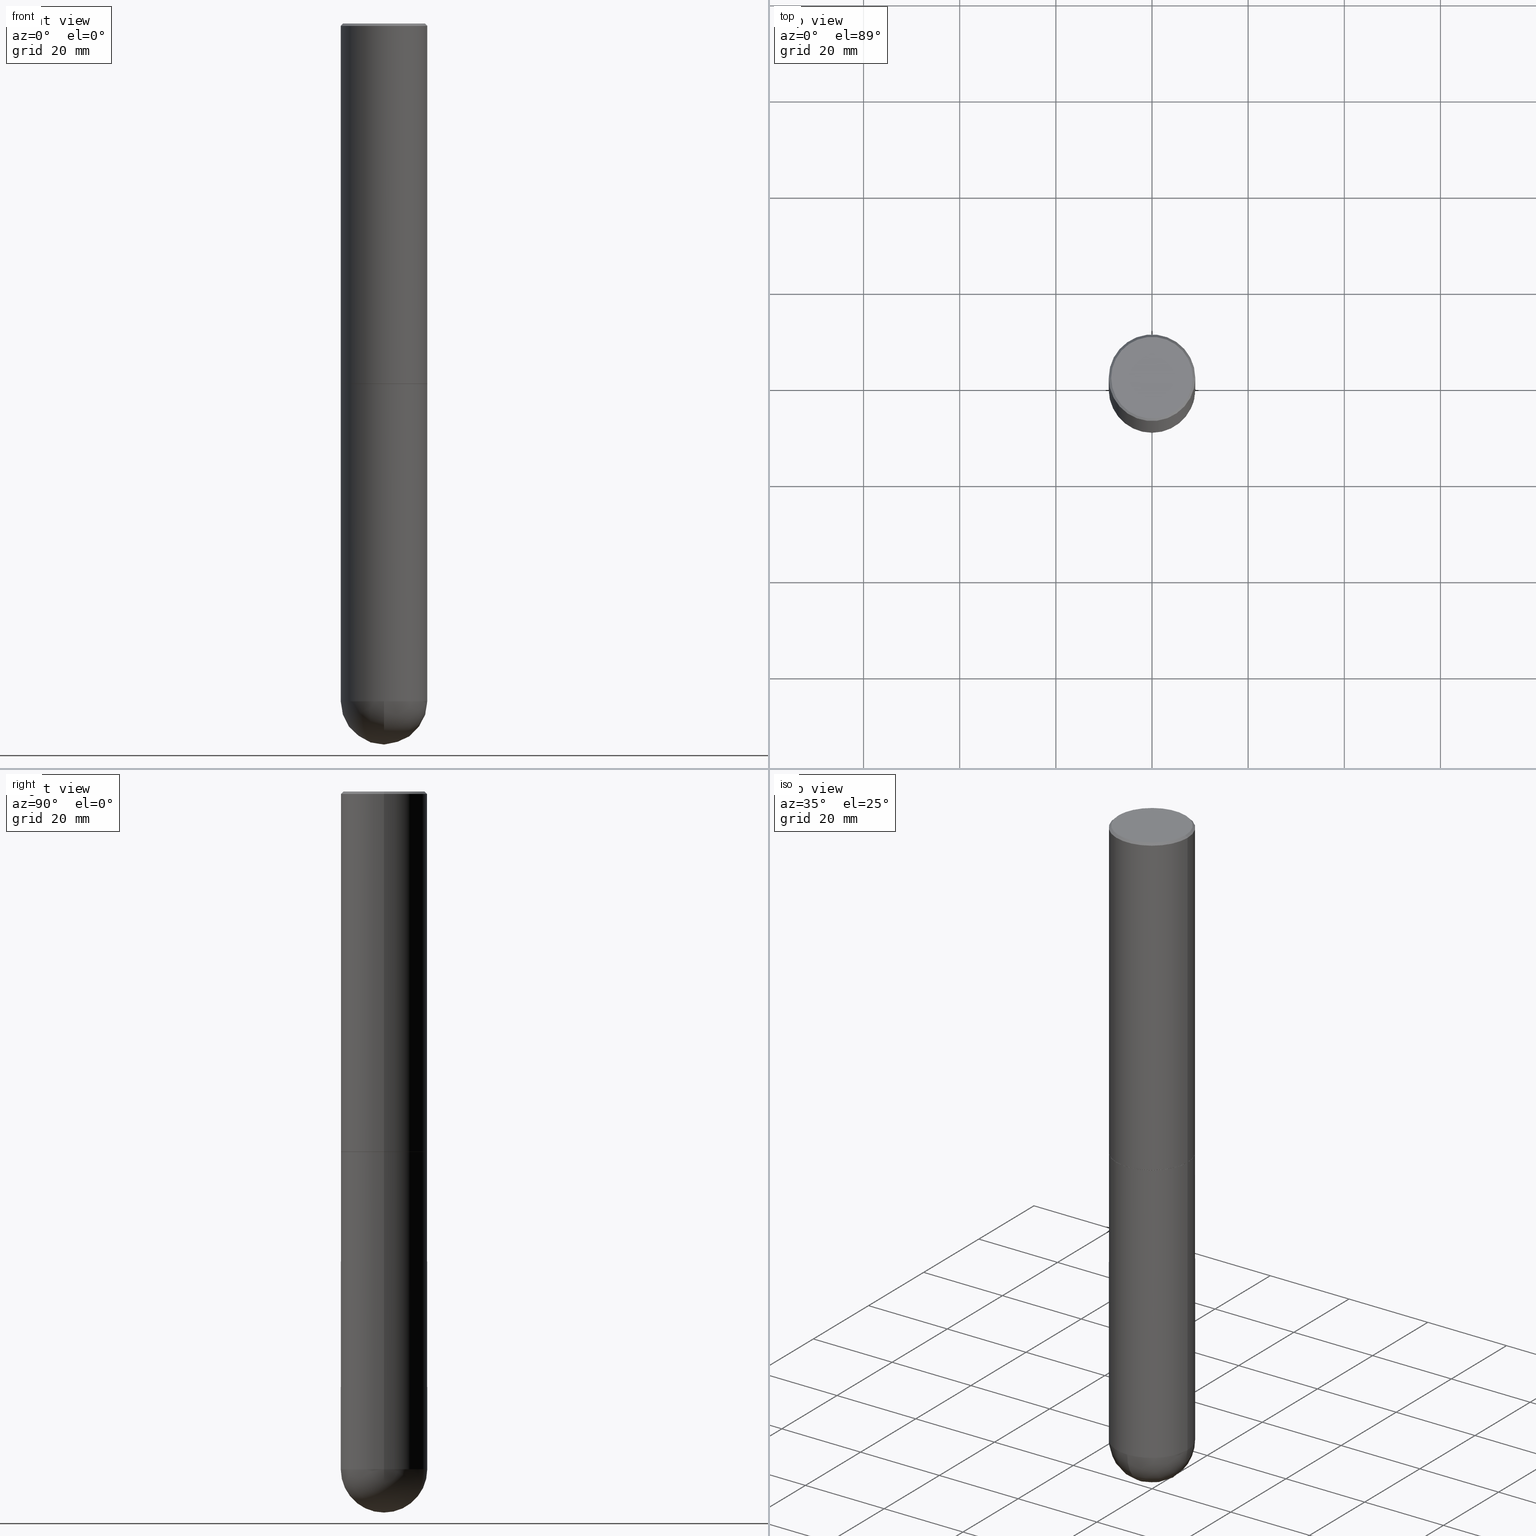
[diagram: canonical four-view strip — front | top / right | iso, engineering-drawing reading convention]
A machine part, canonical four-view strip (front | top / right | iso — engineering-drawing reading convention). The complete STEP part file that produces these views, byte-faithful:
ISO-10303-21;
HEADER;
FILE_DESCRIPTION (( 'STEP AP203' ),
    '1' );
FILE_NAME ('49619.STEP',
    '2024-04-10T12:30:47',
    ( '' ),
    ( '' ),
    'SwSTEP 2.0',
    'SolidWorks 2023',
    '' );
FILE_SCHEMA (( 'CONFIG_CONTROL_DESIGN' ));
ENDSEC;

DATA;
#1 = EDGE_LOOP ( 'NONE', ( #177, #388, #235, #164, #203 ) ) ;
#2 = CARTESIAN_POINT ( 'NONE',  ( -0.3533499999999999974, -7.793295738045619809E-15, -2.952700000000000546 ) ) ;
#3 = EDGE_LOOP ( 'NONE', ( #300, #296, #355, #241 ) ) ;
#4 = ORIENTED_EDGE ( 'NONE', *, *, #351, .F. ) ;
#5 = VERTEX_POINT ( 'NONE', #23 ) ;
#6 = DIRECTION ( 'NONE',  ( 1.000000000000000000, -6.982962677686261189E-15, 0.000000000000000000 ) ) ;
#7 = EDGE_CURVE ( 'NONE', #71, #366, #407, .T. ) ;
#8 = VERTEX_POINT ( 'NONE', #106 ) ;
#9 = AXIS2_PLACEMENT_3D ( 'NONE', #145, #249, #81 ) ;
#10 = SPHERICAL_SURFACE ( 'NONE', #363, 0.3543500000000002204 ) ;
#11 = DIRECTION ( 'NONE',  ( 1.000000000000000000, -6.982962677686265922E-15, 0.000000000000000000 ) ) ;
#12 = CC_DESIGN_PERSON_AND_ORGANIZATION_ASSIGNMENT ( #406, #252, ( #135 ) ) ;
#13 = CARTESIAN_POINT ( 'NONE',  ( 7.220735744022853640E-29, -1.030929694920215659E-14, -2.952700000000000546 ) ) ;
#14 = DIRECTION ( 'NONE',  ( 0.7071067811865466846, -7.319954787623252890E-15, -0.7071067811865483499 ) ) ;
#15 = DATE_AND_TIME ( #244, #70 ) ;
#16 = APPROVAL ( #119, 'UNSPECIFIED' ) ;
#17 = ADVANCED_FACE ( 'NONE', ( #174 ), #196, .T. ) ;
#18 = DIRECTION ( 'NONE',  ( -2.445468806185136597E-29, 3.491481338843145583E-15, 1.000000000000000000 ) ) ;
#19 = DIRECTION ( 'NONE',  ( 2.445468806185136597E-29, -3.491481338843145583E-15, -1.000000000000000000 ) ) ;
#20 = COORDINATED_UNIVERSAL_TIME_OFFSET ( 5, 0, .BEHIND. ) ;
#21 = AXIS2_PLACEMENT_3D ( 'NONE', #74, #178, #358 ) ;
#22 = CARTESIAN_POINT ( 'NONE',  ( -0.3543499999999999983, 2.404583198061265396E-15, -0.02000000000000008021 ) ) ;
#23 = CARTESIAN_POINT ( 'NONE',  ( 0.3543499999999999983, -2.500847092287205690E-15, -0.02000000000000008021 ) ) ;
#24 = PERSON ( 'UNSPECIFIED', 'UNSPECIFIED', 'UNSPECIFIED', ('UNSPECIFIED'), ('UNSPECIFIED'), ('UNSPECIFIED') ) ;
#25 = ORIENTED_EDGE ( 'NONE', *, *, #262, .T. ) ;
#26 = DATE_TIME_ROLE ( 'classification_date' ) ;
#27 = CIRCLE ( 'NONE', #182, 0.3543500000000004424 ) ;
#28 = AXIS2_PLACEMENT_3D ( 'NONE', #404, #266, #228 ) ;
#29 = APPROVAL_PERSON_ORGANIZATION ( #255, #190, #121 ) ;
#30 = CARTESIAN_POINT ( 'NONE',  ( 4.890937612370293302E-31, -6.982962677686318726E-17, -0.02000000000000008021 ) ) ;
#31 = CIRCLE ( 'NONE', #157, 0.3543499999999999428 ) ;
#32 =( LENGTH_UNIT ( ) NAMED_UNIT ( * ) SI_UNIT ( $, .METRE. ) );
#33 = EDGE_CURVE ( 'NONE', #330, #357, #50, .T. ) ;
#34 = DIRECTION ( 'NONE',  ( 1.000000000000000000, -6.982962677686266711E-15, 4.880313359593399126E-29 ) ) ;
#35 = ORIENTED_EDGE ( 'NONE', *, *, #59, .T. ) ;
#36 = ORIENTED_EDGE ( 'NONE', *, *, #273, .T. ) ;
#37 = APPROVAL_PERSON_ORGANIZATION ( #391, #64, #107 ) ;
#38 = ORIENTED_EDGE ( 'NONE', *, *, #378, .T. ) ;
#39 = ADVANCED_FACE ( 'NONE', ( #154 ), #54, .F. ) ;
#40 = LINE ( 'NONE', #344, #337 ) ;
#41 = ORIENTED_EDGE ( 'NONE', *, *, #133, .T. ) ;
#42 = EDGE_CURVE ( 'NONE', #101, #334, #287, .T. ) ;
#43 = ORIENTED_EDGE ( 'NONE', *, *, #51, .T. ) ;
#44 = CIRCLE ( 'NONE', #130, 0.3543499999999999983 ) ;
#45 = AXIS2_PLACEMENT_3D ( 'NONE', #412, #198, #126 ) ;
#46 = DIRECTION ( 'NONE',  ( 2.438088387897960049E-29, -3.491481338843145188E-15, -1.000000000000000000 ) ) ;
#47 = CARTESIAN_POINT ( 'NONE',  ( 1.357516416345461774E-28, -1.938173663411912545E-14, -5.551149999999999807 ) ) ;
#48 = PERSON_AND_ORGANIZATION_ROLE ( 'design_supplier' ) ;
#49 = DIRECTION ( 'NONE',  ( 1.000000000000000000, -6.982962677686266711E-15, 4.876176775795935793E-29 ) ) ;
#50 = LINE ( 'NONE', #284, #324 ) ;
#51 = EDGE_CURVE ( 'NONE', #8, #5, #251, .T. ) ;
#52 = DATE_TIME_ROLE ( 'creation_date' ) ;
#53 = DIRECTION ( 'NONE',  ( -2.445468806185136597E-29, 3.491481338843145583E-15, 1.000000000000000000 ) ) ;
#54 = PLANE ( 'NONE',  #123 ) ;
#55 = AXIS2_PLACEMENT_3D ( 'NONE', #245, #46, #108 ) ;
#56 = FACE_OUTER_BOUND ( 'NONE', #238, .T. ) ;
#57 = CARTESIAN_POINT ( 'NONE',  ( 1.412574766574097249E-28, -2.107142773501435227E-14, -5.905499999999999972 ) ) ;
#58 = DIRECTION ( 'NONE',  ( 0.000000000000000000, 0.000000000000000000, 1.000000000000000000 ) ) ;
#59 = EDGE_CURVE ( 'NONE', #5, #353, #44, .T. ) ;
#60 = DIRECTION ( 'NONE',  ( 1.000000000000000000, -6.982962677686261189E-15, 0.000000000000000000 ) ) ;
#61 = DATE_AND_TIME ( #187, #112 ) ;
#62 = CC_DESIGN_DATE_AND_TIME_ASSIGNMENT ( #306, #52, ( #135 ) ) ;
#63 = EDGE_CURVE ( 'NONE', #334, #146, #289, .T. ) ;
#64 = APPROVAL ( #155, 'UNSPECIFIED' ) ;
#65 = CARTESIAN_POINT ( 'NONE',  ( -5.636797637410186442E-45, 8.047853120054415592E-31, 2.304996744654222029E-16 ) ) ;
#66 = VECTOR ( 'NONE', #409, 39.37007874015748143 ) ;
#67 = ORIENTED_EDGE ( 'NONE', *, *, #273, .F. ) ;
#68 = ORIENTED_EDGE ( 'NONE', *, *, #95, .T. ) ;
#69 = ORIENTED_EDGE ( 'NONE', *, *, #7, .F. ) ;
#70 = LOCAL_TIME ( 8, 30, 46.00000000000000000, #20 ) ;
#71 = VERTEX_POINT ( 'NONE', #57 ) ;
#72 = DIRECTION ( 'NONE',  ( 1.000000000000000000, -6.982962677686267499E-15, 0.000000000000000000 ) ) ;
#73 = ORIENTED_EDGE ( 'NONE', *, *, #397, .F. ) ;
#74 = CARTESIAN_POINT ( 'NONE',  ( 0.000000000000000000, 0.000000000000000000, 0.000000000000000000 ) ) ;
#75 = DIRECTION ( 'NONE',  ( -2.445468806185136597E-29, 3.491481338843145583E-15, 1.000000000000000000 ) ) ;
#76 = PERSON_AND_ORGANIZATION ( #24, #224 ) ;
#77 = AXIS2_PLACEMENT_3D ( 'NONE', #65, #225, #34 ) ;
#78 = CYLINDRICAL_SURFACE ( 'NONE', #21, 0.3543500000000002204 ) ;
#79 = CARTESIAN_POINT ( 'NONE',  ( -0.3543499999999999983, -1.232770860749472484E-14, -2.952700000000000102 ) ) ;
#80 = PRODUCT ( '49619', '49619', '', ( #316 ) ) ;
#81 = DIRECTION ( 'NONE',  ( 1.000000000000000000, -6.982962677686267499E-15, 0.000000000000000000 ) ) ;
#82 = DIRECTION ( 'NONE',  ( -2.445468806185136597E-29, 3.491481338843145583E-15, 1.000000000000000000 ) ) ;
#83 = DIRECTION ( 'NONE',  ( 1.000000000000000000, -6.982962677686266711E-15, 4.880313359593399126E-29 ) ) ;
#84 = CARTESIAN_POINT ( 'NONE',  ( 7.220735744022852519E-29, -1.030929694920215502E-14, -2.952700000000000102 ) ) ;
#85 = EDGE_CURVE ( 'NONE', #101, #272, #269, .T. ) ;
#86 = CLOSED_SHELL ( 'NONE', ( #205, #194, #292, #17, #370, #221, #380, #183 ) ) ;
#87 = AXIS2_PLACEMENT_3D ( 'NONE', #401, #18, #6 ) ;
#88 = MANIFOLD_SOLID_BREP ( 'Body-Move/Copy2[1]', #209 ) ;
#89 = DIRECTION ( 'NONE',  ( 1.000000000000000000, -6.982962677686261189E-15, 0.000000000000000000 ) ) ;
#90 = CC_DESIGN_DATE_AND_TIME_ASSIGNMENT ( #153, #26, ( #148 ) ) ;
#91 = CIRCLE ( 'NONE', #197, 0.3543500000000002204 ) ;
#92 = CC_DESIGN_APPROVAL ( #190, ( #365 ) ) ;
#93 = FACE_OUTER_BOUND ( 'NONE', #271, .T. ) ;
#94 = DIRECTION ( 'NONE',  ( 1.000000000000000000, -6.982962677686266711E-15, 0.000000000000000000 ) ) ;
#95 = EDGE_CURVE ( 'NONE', #357, #375, #27, .T. ) ;
#96 = AXIS2_PLACEMENT_3D ( 'NONE', #84, #219, #11 ) ;
#97 = ORIENTED_EDGE ( 'NONE', *, *, #33, .T. ) ;
#98 = ORIENTED_EDGE ( 'NONE', *, *, #378, .F. ) ;
#99 = EDGE_LOOP ( 'NONE', ( #69, #41, #354, #186 ) ) ;
#100 = DIMENSIONAL_EXPONENTS ( 1.000000000000000000, 0.000000000000000000, 0.000000000000000000, 0.000000000000000000, 0.000000000000000000, 0.000000000000000000, 0.000000000000000000 ) ;
#101 = VERTEX_POINT ( 'NONE', #258 ) ;
#102 = CONICAL_SURFACE ( 'NONE', #346, 0.3533499999999999974, 0.7853981633974824739 ) ;
#103 = DIRECTION ( 'NONE',  ( -1.000000000000000000, 6.982962677686266711E-15, 0.000000000000000000 ) ) ;
#104 = ORIENTED_EDGE ( 'NONE', *, *, #149, .F. ) ;
#105 = DIRECTION ( 'NONE',  ( -1.000000000000000000, 6.982962677686265922E-15, -4.883557194083112340E-29 ) ) ;
#106 = CARTESIAN_POINT ( 'NONE',  ( 0.3343499999999997585, -2.397327298921057526E-15, 2.304996744654387690E-16 ) ) ;
#107 = APPROVAL_ROLE ( '' ) ;
#108 = DIRECTION ( 'NONE',  ( -1.000000000000000000, 6.982962677686265922E-15, -4.876176775795935793E-29 ) ) ;
#109 = CARTESIAN_POINT ( 'NONE',  ( 1.357516416345461774E-28, -1.938173663411912545E-14, -5.551149999999999807 ) ) ;
#110 = COORDINATED_UNIVERSAL_TIME_OFFSET ( 5, 0, .BEHIND. ) ;
#111 = AXIS2_PLACEMENT_3D ( 'NONE', #212, #142, #49 ) ;
#112 = LOCAL_TIME ( 8, 30, 46.00000000000000000, #260 ) ;
#113 = DIRECTION ( 'NONE',  ( 1.000000000000000000, -6.982962677686267499E-15, 0.000000000000000000 ) ) ;
#114 = CARTESIAN_POINT ( 'NONE',  ( 0.3543499999999999983, -2.474412824838128694E-15, 1.727873240503289749E-29 ) ) ;
#115 = ADVANCED_BREP_SHAPE_REPRESENTATION ( '49619', ( #88, #232, #396 ), #349 ) ;
#116 = DIRECTION ( 'NONE',  ( -2.445468806185136597E-29, 3.491481338843145583E-15, 1.000000000000000000 ) ) ;
#117 = DIRECTION ( 'NONE',  ( -2.445468806185136877E-29, 3.491481338843145188E-15, 1.000000000000000000 ) ) ;
#118 = EDGE_CURVE ( 'NONE', #272, #201, #411, .T. ) ;
#119 = APPROVAL_STATUS ( 'not_yet_approved' ) ;
#120 = DIRECTION ( 'NONE',  ( -2.445468806185136597E-29, 3.491481338843145583E-15, 1.000000000000000000 ) ) ;
#121 = APPROVAL_ROLE ( '' ) ;
#122 = VECTOR ( 'NONE', #117, 39.37007874015748143 ) ;
#123 = AXIS2_PLACEMENT_3D ( 'NONE', #281, #303, #151 ) ;
#124 = AXIS2_PLACEMENT_3D ( 'NONE', #368, #253, #180 ) ;
#125 = APPROVAL_ROLE ( '' ) ;
#126 = DIRECTION ( 'NONE',  ( 1.000000000000000000, -6.982962677686267499E-15, 0.000000000000000000 ) ) ;
#127 = CARTESIAN_POINT ( 'NONE',  ( 7.220735744022853640E-29, -1.030929694920215659E-14, -2.952700000000000546 ) ) ;
#128 = LINE ( 'NONE', #227, #192 ) ;
#129 = ORIENTED_EDGE ( 'NONE', *, *, #317, .F. ) ;
#130 = AXIS2_PLACEMENT_3D ( 'NONE', #347, #82, #402 ) ;
#131 = AXIS2_PLACEMENT_3D ( 'NONE', #127, #195, #326 ) ;
#132 = VERTEX_POINT ( 'NONE', #222 ) ;
#133 = EDGE_CURVE ( 'NONE', #71, #272, #91, .T. ) ;
#134 = EDGE_LOOP ( 'NONE', ( #277, #167 ) ) ;
#135 = PRODUCT_DEFINITION ( 'UNKNOWN', '', #365, #410 ) ;
#136 = ORIENTED_EDGE ( 'NONE', *, *, #42, .T. ) ;
#137 = DIRECTION ( 'NONE',  ( -2.445468806185136597E-29, 3.491481338843145583E-15, 1.000000000000000000 ) ) ;
#138 = EDGE_LOOP ( 'NONE', ( #236, #267, #104, #382 ) ) ;
#139 = ADVANCED_FACE ( 'NONE', ( #179 ), #247, .T. ) ;
#140 = DIRECTION ( 'NONE',  ( 0.7071067811865715536, -2.468850131082509496E-15, 0.7071067811865232589 ) ) ;
#141 = CARTESIAN_POINT ( 'NONE',  ( 1.324404438554073486E-28, -1.985591900225917417E-14, -5.551149999999999807 ) ) ;
#142 = DIRECTION ( 'NONE',  ( -2.445468806185136597E-29, 3.491481338843145583E-15, 1.000000000000000000 ) ) ;
#143 = DIRECTION ( 'NONE',  ( -1.000000000000000000, 6.982962677686266711E-15, 0.000000000000000000 ) ) ;
#144 = SECURITY_CLASSIFICATION_LEVEL ( 'unclassified' ) ;
#145 = CARTESIAN_POINT ( 'NONE',  ( 7.220735744022853640E-29, -1.030929694920215659E-14, -2.952700000000000546 ) ) ;
#146 = VERTEX_POINT ( 'NONE', #79 ) ;
#147 = VECTOR ( 'NONE', #170, 39.37007874015748143 ) ;
#148 = SECURITY_CLASSIFICATION ( '', '', #144 ) ;
#149 = EDGE_CURVE ( 'NONE', #201, #366, #31, .T. ) ;
#150 = CARTESIAN_POINT ( 'NONE',  ( 2.474412824838263195E-15, 0.3543499999999804584, -5.551150000000000695 ) ) ;
#151 = DIRECTION ( 'NONE',  ( -1.000000000000000000, 6.982962677686265922E-15, -4.876176775795935793E-29 ) ) ;
#152 = APPLICATION_PROTOCOL_DEFINITION ( 'international standard', 'config_control_design', 1994, #311 ) ;
#153 = DATE_AND_TIME ( #248, #158 ) ;
#154 = FACE_OUTER_BOUND ( 'NONE', #134, .T. ) ;
#155 = APPROVAL_STATUS ( 'not_yet_approved' ) ;
#156 = FACE_OUTER_BOUND ( 'NONE', #138, .T. ) ;
#157 = AXIS2_PLACEMENT_3D ( 'NONE', #47, #321, #60 ) ;
#158 = LOCAL_TIME ( 8, 30, 46.00000000000000000, #110 ) ;
#159 = CALENDAR_DATE ( 2024, 10, 4 ) ;
#160 = AXIS2_PLACEMENT_3D ( 'NONE', #13, #53, #72 ) ;
#161 = CYLINDRICAL_SURFACE ( 'NONE', #28, 0.3543500000000002204 ) ;
#162 = EDGE_LOOP ( 'NONE', ( #98, #43, #35, #384 ) ) ;
#163 =( NAMED_UNIT ( * ) PLANE_ANGLE_UNIT ( ) SI_UNIT ( $, .RADIAN. ) );
#164 = ORIENTED_EDGE ( 'NONE', *, *, #42, .F. ) ;
#165 = ADVANCED_FACE ( 'NONE', ( #156 ), #188, .T. ) ;
#166 = LOCAL_TIME ( 8, 30, 46.00000000000000000, #189 ) ;
#167 = ORIENTED_EDGE ( 'NONE', *, *, #169, .T. ) ;
#168 = ORIENTED_EDGE ( 'NONE', *, *, #250, .T. ) ;
#169 = EDGE_CURVE ( 'NONE', #146, #334, #237, .T. ) ;
#170 = DIRECTION ( 'NONE',  ( -0.7071067811865466846, 2.468850131082247989E-15, -0.7071067811865483499 ) ) ;
#171 = ORIENTED_EDGE ( 'NONE', *, *, #59, .F. ) ;
#172 = LINE ( 'NONE', #338, #66 ) ;
#173 = CIRCLE ( 'NONE', #408, 0.3543499999999999983 ) ;
#174 = FACE_OUTER_BOUND ( 'NONE', #294, .T. ) ;
#175 = CIRCLE ( 'NONE', #374, 0.3343499999999997585 ) ;
#176 = DIRECTION ( 'NONE',  ( 1.000000000000000000, -6.982962677686265922E-15, 0.000000000000000000 ) ) ;
#177 = ORIENTED_EDGE ( 'NONE', *, *, #118, .T. ) ;
#178 = DIRECTION ( 'NONE',  ( -2.445468806185136597E-29, 3.491481338843145583E-15, 1.000000000000000000 ) ) ;
#179 = FACE_OUTER_BOUND ( 'NONE', #274, .T. ) ;
#180 = DIRECTION ( 'NONE',  ( 6.982962677686265922E-15, 1.000000000000000000, -3.083784951222533328E-15 ) ) ;
#181 = ORIENTED_EDGE ( 'NONE', *, *, #397, .T. ) ;
#182 = AXIS2_PLACEMENT_3D ( 'NONE', #405, #120, #210 ) ;
#183 = ADVANCED_FACE ( 'NONE', ( #392 ), #280, .F. ) ;
#184 = CC_DESIGN_SECURITY_CLASSIFICATION ( #148, ( #365 ) ) ;
#185 = CARTESIAN_POINT ( 'NONE',  ( 0.3543500000000004424, -1.278021829270144662E-14, -2.951700000000000212 ) ) ;
#186 = ORIENTED_EDGE ( 'NONE', *, *, #239, .F. ) ;
#187 = CALENDAR_DATE ( 2024, 10, 4 ) ;
#188 = SPHERICAL_SURFACE ( 'NONE', #124, 0.3543500000000002204 ) ;
#189 = COORDINATED_UNIVERSAL_TIME_OFFSET ( 5, 0, .BEHIND. ) ;
#190 = APPROVAL ( #218, 'UNSPECIFIED' ) ;
#191 = AXIS2_PLACEMENT_3D ( 'NONE', #373, #390, #216 ) ;
#192 = VECTOR ( 'NONE', #323, 39.37007874015748143 ) ;
#193 = PLANE ( 'NONE',  #131 ) ;
#194 = ADVANCED_FACE ( 'NONE', ( #283 ), #78, .T. ) ;
#195 = DIRECTION ( 'NONE',  ( -2.438088387897960049E-29, 3.491481338843145188E-15, 1.000000000000000000 ) ) ;
#196 = CONICAL_SURFACE ( 'NONE', #259, 0.3543499999999999983, 0.7853981633974471688 ) ;
#197 = AXIS2_PLACEMENT_3D ( 'NONE', #141, #279, #243 ) ;
#198 = DIRECTION ( 'NONE',  ( -2.445468806185136597E-29, 3.491481338843145583E-15, 1.000000000000000000 ) ) ;
#199 = ORIENTED_EDGE ( 'NONE', *, *, #51, .F. ) ;
#200 = EDGE_CURVE ( 'NONE', #293, #375, #398, .T. ) ;
#201 = VERTEX_POINT ( 'NONE', #215 ) ;
#202 = LOCAL_TIME ( 8, 30, 46.00000000000000000, #256 ) ;
#203 = ORIENTED_EDGE ( 'NONE', *, *, #85, .T. ) ;
#204 = ORIENTED_EDGE ( 'NONE', *, *, #234, .F. ) ;
#205 = ADVANCED_FACE ( 'NONE', ( #360 ), #102, .T. ) ;
#206 = CARTESIAN_POINT ( 'NONE',  ( 0.3533499999999999974, -1.277672681136259888E-14, -2.952700000000000546 ) ) ;
#207 = EDGE_LOOP ( 'NONE', ( #329, #181, #171, #343 ) ) ;
#208 = DIRECTION ( 'NONE',  ( 1.000000000000000000, -6.982962677686268288E-15, 0.000000000000000000 ) ) ;
#209 = CLOSED_SHELL ( 'NONE', ( #226, #165, #298, #39, #139 ) ) ;
#210 = DIRECTION ( 'NONE',  ( 1.000000000000000000, -6.982962677686268288E-15, 0.000000000000000000 ) ) ;
#211 = DIRECTION ( 'NONE',  ( 1.000000000000000000, 0.000000000000000000, 0.000000000000000000 ) ) ;
#212 = CARTESIAN_POINT ( 'NONE',  ( 0.000000000000000000, 0.000000000000000000, 0.000000000000000000 ) ) ;
#213 = ORIENTED_EDGE ( 'NONE', *, *, #169, .F. ) ;
#214 = APPLICATION_PROTOCOL_DEFINITION ( 'international standard', 'config_control_design', 1994, #261 ) ;
#215 = CARTESIAN_POINT ( 'NONE',  ( -0.3543499999999999428, -1.232770860749472642E-14, -5.551149999999999807 ) ) ;
#216 = DIRECTION ( 'NONE',  ( -7.105427357601001070E-15, -1.000000000000000000, 0.000000000000000000 ) ) ;
#217 = CC_DESIGN_PERSON_AND_ORGANIZATION_ASSIGNMENT ( #310, #322, ( #80 ) ) ;
#218 = APPROVAL_STATUS ( 'not_yet_approved' ) ;
#219 = DIRECTION ( 'NONE',  ( -2.445468806185136597E-29, 3.491481338843145583E-15, 1.000000000000000000 ) ) ;
#220 = CIRCLE ( 'NONE', #276, 0.3543500000000004424 ) ;
#221 = ADVANCED_FACE ( 'NONE', ( #333 ), #264, .T. ) ;
#222 = CARTESIAN_POINT ( 'NONE',  ( -0.3343499999999997585, 2.369668384672834141E-15, 2.304996744654057847E-16 ) ) ;
#223 = SHAPE_DEFINITION_REPRESENTATION ( #309, #115 ) ;
#224 = ORGANIZATION ( 'UNSPECIFIED', 'UNSPECIFIED', '' ) ;
#225 = DIRECTION ( 'NONE',  ( -2.445468806185136597E-29, 3.491481338843145583E-15, 1.000000000000000000 ) ) ;
#226 = ADVANCED_FACE ( 'NONE', ( #342 ), #301, .T. ) ;
#227 = CARTESIAN_POINT ( 'NONE',  ( -0.3543500000000002204, 2.517808184165916574E-15, -1.743024649231827187E-29 ) ) ;
#228 = DIRECTION ( 'NONE',  ( 1.000000000000000000, -6.982962677686266711E-15, 4.876176775795935793E-29 ) ) ;
#229 = LENGTH_MEASURE_WITH_UNIT ( LENGTH_MEASURE( 0.02539999999999999897 ), #32 );
#230 = VECTOR ( 'NONE', #14, 39.37007874015748143 ) ;
#231 = CIRCLE ( 'NONE', #45, 0.3533499999999999974 ) ;
#232 = MANIFOLD_SOLID_BREP ( 'Body-Move/Copy2[2]', #86 ) ;
#233 = ORIENTED_EDGE ( 'NONE', *, *, #327, .F. ) ;
#234 = EDGE_CURVE ( 'NONE', #375, #357, #220, .T. ) ;
#235 = ORIENTED_EDGE ( 'NONE', *, *, #63, .F. ) ;
#236 = ORIENTED_EDGE ( 'NONE', *, *, #133, .F. ) ;
#237 = CIRCLE ( 'NONE', #331, 0.3543499999999999983 ) ;
#238 = EDGE_LOOP ( 'NONE', ( #336, #4 ) ) ;
#239 = EDGE_CURVE ( 'NONE', #366, #101, #246, .T. ) ;
#240 = CARTESIAN_POINT ( 'NONE',  ( 7.220735744022853640E-29, -1.030929694920215659E-14, -2.952700000000000546 ) ) ;
#241 = ORIENTED_EDGE ( 'NONE', *, *, #95, .F. ) ;
#242 = DIRECTION ( 'NONE',  ( 6.982962677686265922E-15, 1.000000000000000000, -3.083784951222533328E-15 ) ) ;
#243 = DIRECTION ( 'NONE',  ( 6.982962677686265133E-15, 1.000000000000000000, 0.000000000000000000 ) ) ;
#244 = CALENDAR_DATE ( 2024, 10, 4 ) ;
#245 = CARTESIAN_POINT ( 'NONE',  ( 2.334753571284400914E-15, 0.3343499999999997585, -1.052126948409493867E-15 ) ) ;
#246 = CIRCLE ( 'NONE', #87, 0.3543499999999999428 ) ;
#247 = CYLINDRICAL_SURFACE ( 'NONE', #290, 0.3543499999999999983 ) ;
#248 = CALENDAR_DATE ( 2024, 10, 4 ) ;
#249 = DIRECTION ( 'NONE',  ( -2.445468806185136597E-29, 3.491481338843145583E-15, 1.000000000000000000 ) ) ;
#250 = EDGE_CURVE ( 'NONE', #293, #330, #325, .T. ) ;
#251 = LINE ( 'NONE', #369, #230 ) ;
#252 = PERSON_AND_ORGANIZATION_ROLE ( 'creator' ) ;
#253 = DIRECTION ( 'NONE',  ( -1.000000000000000000, 6.982962677686265922E-15, -4.883557194083112340E-29 ) ) ;
#254 = ORIENTED_EDGE ( 'NONE', *, *, #239, .T. ) ;
#255 = PERSON_AND_ORGANIZATION ( #24, #224 ) ;
#256 = COORDINATED_UNIVERSAL_TIME_OFFSET ( 5, 0, .BEHIND. ) ;
#257 = UNCERTAINTY_MEASURE_WITH_UNIT (LENGTH_MEASURE( 1.000000000000000082E-05 ), #318, 'distance_accuracy_value', 'NONE');
#258 = CARTESIAN_POINT ( 'NONE',  ( 0.3543499999999999428, -1.731992961649876932E-14, -5.551149999999999807 ) ) ;
#259 = AXIS2_PLACEMENT_3D ( 'NONE', #399, #19, #143 ) ;
#260 = COORDINATED_UNIVERSAL_TIME_OFFSET ( 5, 0, .BEHIND. ) ;
#261 = APPLICATION_CONTEXT ( 'configuration controlled 3d designs of mechanical parts and assemblies' ) ;
#262 = EDGE_CURVE ( 'NONE', #375, #5, #40, .T. ) ;
#263 = EDGE_CURVE ( 'NONE', #132, #353, #312, .T. ) ;
#264 = CONICAL_SURFACE ( 'NONE', #160, 0.3533499999999999974, 0.7853981633974824739 ) ;
#265 = DIRECTION ( 'NONE',  ( -2.445468806185136597E-29, 3.491481338843145583E-15, 1.000000000000000000 ) ) ;
#266 = DIRECTION ( 'NONE',  ( -2.445468806185136597E-29, 3.491481338843145583E-15, 1.000000000000000000 ) ) ;
#267 = ORIENTED_EDGE ( 'NONE', *, *, #7, .T. ) ;
#268 =( NAMED_UNIT ( * ) SI_UNIT ( $, .STERADIAN. ) SOLID_ANGLE_UNIT ( ) );
#269 = CIRCLE ( 'NONE', #381, 0.3543499999999999428 ) ;
#270 = CIRCLE ( 'NONE', #77, 0.3343499999999997585 ) ;
#271 = EDGE_LOOP ( 'NONE', ( #73, #68, #25, #233 ) ) ;
#272 = VERTEX_POINT ( 'NONE', #150 ) ;
#273 = EDGE_CURVE ( 'NONE', #132, #8, #175, .T. ) ;
#274 = EDGE_LOOP ( 'NONE', ( #129, #308, #254, #136, #213 ) ) ;
#275 = CARTESIAN_POINT ( 'NONE',  ( 4.890937612370293302E-31, -6.982962677686318726E-17, -0.02000000000000008021 ) ) ;
#276 = AXIS2_PLACEMENT_3D ( 'NONE', #372, #307, #208 ) ;
#277 = ORIENTED_EDGE ( 'NONE', *, *, #63, .T. ) ;
#278 = DIRECTION ( 'NONE',  ( -2.445468806185136877E-29, 3.491481338843145188E-15, 1.000000000000000000 ) ) ;
#279 = DIRECTION ( 'NONE',  ( 1.000000000000000000, -6.982962677686265922E-15, 4.883557194083112340E-29 ) ) ;
#280 = PLANE ( 'NONE',  #55 ) ;
#281 = CARTESIAN_POINT ( 'NONE',  ( 2.474412824838200480E-15, 0.3543499999999896732, -2.952700000000000990 ) ) ;
#282 = PERSON_AND_ORGANIZATION ( #24, #224 ) ;
#283 = FACE_OUTER_BOUND ( 'NONE', #207, .T. ) ;
#284 = CARTESIAN_POINT ( 'NONE',  ( -0.3533499999999999974, -7.798594192393843789E-15, -2.952700000000000546 ) ) ;
#285 = APPROVAL_DATE_TIME ( #376, #16 ) ;
#286 = CARTESIAN_POINT ( 'NONE',  ( -5.636797637410186442E-45, 8.047853120054415592E-31, 2.304996744654222029E-16 ) ) ;
#287 = LINE ( 'NONE', #114, #122 ) ;
#288 = DIRECTION ( 'NONE',  ( -2.445468806185136597E-29, 3.491481338843145583E-15, 1.000000000000000000 ) ) ;
#289 = CIRCLE ( 'NONE', #96, 0.3543499999999999983 ) ;
#290 = AXIS2_PLACEMENT_3D ( 'NONE', #361, #75, #340 ) ;
#291 = CARTESIAN_POINT ( 'NONE',  ( 0.3543499999999999983, -1.278370977404028332E-14, -2.952700000000000102 ) ) ;
#292 = ADVANCED_FACE ( 'NONE', ( #299 ), #302, .T. ) ;
#293 = VERTEX_POINT ( 'NONE', #206 ) ;
#294 = EDGE_LOOP ( 'NONE', ( #199, #67, #385, #359 ) ) ;
#295 = CC_DESIGN_APPROVAL ( #16, ( #148 ) ) ;
#296 = ORIENTED_EDGE ( 'NONE', *, *, #351, .T. ) ;
#297 = CC_DESIGN_PERSON_AND_ORGANIZATION_ASSIGNMENT ( #76, #48, ( #365 ) ) ;
#298 = ADVANCED_FACE ( 'NONE', ( #335 ), #10, .T. ) ;
#299 = FACE_OUTER_BOUND ( 'NONE', #162, .T. ) ;
#300 = ORIENTED_EDGE ( 'NONE', *, *, #33, .F. ) ;
#301 = CYLINDRICAL_SURFACE ( 'NONE', #111, 0.3543499999999999983 ) ;
#302 = CONICAL_SURFACE ( 'NONE', #352, 0.3543499999999999983, 0.7853981633974471688 ) ;
#303 = DIRECTION ( 'NONE',  ( 2.438088387897960049E-29, -3.491481338843145188E-15, -1.000000000000000000 ) ) ;
#304 = CARTESIAN_POINT ( 'NONE',  ( 0.3533499999999999974, -1.277672681136259888E-14, -2.952700000000000546 ) ) ;
#305 = DIRECTION ( 'NONE',  ( -2.445468806185136597E-29, 3.491481338843145583E-15, 1.000000000000000000 ) ) ;
#306 = DATE_AND_TIME ( #403, #166 ) ;
#307 = DIRECTION ( 'NONE',  ( -2.445468806185136597E-29, 3.491481338843145583E-15, 1.000000000000000000 ) ) ;
#308 = ORIENTED_EDGE ( 'NONE', *, *, #149, .T. ) ;
#309 = PRODUCT_DEFINITION_SHAPE ( 'NONE', 'NONE',  #135 ) ;
#310 = PERSON_AND_ORGANIZATION ( #24, #224 ) ;
#311 = APPLICATION_CONTEXT ( 'configuration controlled 3d designs of mechanical parts and assemblies' ) ;
#312 = LINE ( 'NONE', #22, #147 ) ;
#313 = AXIS2_PLACEMENT_3D ( 'NONE', #109, #305, #89 ) ;
#314 = ORIENTED_EDGE ( 'NONE', *, *, #200, .F. ) ;
#315 = APPROVAL_PERSON_ORGANIZATION ( #367, #16, #125 ) ;
#316 = MECHANICAL_CONTEXT ( 'NONE', #261, 'mechanical' ) ;
#317 = EDGE_CURVE ( 'NONE', #201, #146, #172, .T. ) ;
#318 =( CONVERSION_BASED_UNIT ( 'INCH', #229 ) LENGTH_UNIT ( ) NAMED_UNIT ( #100 ) );
#319 = CARTESIAN_POINT ( 'NONE',  ( 1.357516416345461774E-28, -1.938173663411912545E-14, -5.551149999999999807 ) ) ;
#320 = APPROVAL_DATE_TIME ( #61, #64 ) ;
#321 = DIRECTION ( 'NONE',  ( -2.445468806185136597E-29, 3.491481338843145583E-15, 1.000000000000000000 ) ) ;
#322 = PERSON_AND_ORGANIZATION_ROLE ( 'design_owner' ) ;
#323 = DIRECTION ( 'NONE',  ( -2.445468806185136877E-29, 3.491481338843145188E-15, 1.000000000000000000 ) ) ;
#324 = VECTOR ( 'NONE', #345, 39.37007874015748854 ) ;
#325 = CIRCLE ( 'NONE', #9, 0.3533499999999999974 ) ;
#326 = DIRECTION ( 'NONE',  ( 1.000000000000000000, -6.982962677686265922E-15, 4.876176775795935793E-29 ) ) ;
#327 = EDGE_CURVE ( 'NONE', #353, #5, #173, .T. ) ;
#328 = CARTESIAN_POINT ( 'NONE',  ( -0.3543500000000004424, -2.670009363154166740E-15, -2.951700000000000212 ) ) ;
#329 = ORIENTED_EDGE ( 'NONE', *, *, #234, .T. ) ;
#330 = VERTEX_POINT ( 'NONE', #2 ) ;
#331 = AXIS2_PLACEMENT_3D ( 'NONE', #348, #137, #176 ) ;
#332 = EDGE_LOOP ( 'NONE', ( #168, #97, #204, #314 ) ) ;
#333 = FACE_OUTER_BOUND ( 'NONE', #3, .T. ) ;
#334 = VERTEX_POINT ( 'NONE', #291 ) ;
#335 = FACE_OUTER_BOUND ( 'NONE', #99, .T. ) ;
#336 = ORIENTED_EDGE ( 'NONE', *, *, #250, .F. ) ;
#337 = VECTOR ( 'NONE', #278, 39.37007874015748143 ) ;
#338 = CARTESIAN_POINT ( 'NONE',  ( -0.3543499999999999983, 2.517808184165914997E-15, -1.743024649231826066E-29 ) ) ;
#339 = CC_DESIGN_APPROVAL ( #64, ( #135 ) ) ;
#340 = DIRECTION ( 'NONE',  ( 1.000000000000000000, -6.982962677686266711E-15, 4.876176775795935793E-29 ) ) ;
#341 = APPROVAL_DATE_TIME ( #15, #190 ) ;
#342 = FACE_OUTER_BOUND ( 'NONE', #1, .T. ) ;
#343 = ORIENTED_EDGE ( 'NONE', *, *, #262, .F. ) ;
#344 = CARTESIAN_POINT ( 'NONE',  ( 0.3543500000000002204, -2.474412824838130272E-15, 1.727873240503290870E-29 ) ) ;
#345 = DIRECTION ( 'NONE',  ( -0.7071067811865715536, 7.493145998870439357E-15, 0.7071067811865232589 ) ) ;
#346 = AXIS2_PLACEMENT_3D ( 'NONE', #240, #364, #113 ) ;
#347 = CARTESIAN_POINT ( 'NONE',  ( 4.890937612370293302E-31, -6.982962677686318726E-17, -0.02000000000000008021 ) ) ;
#348 = CARTESIAN_POINT ( 'NONE',  ( 7.220735744022852519E-29, -1.030929694920215502E-14, -2.952700000000000102 ) ) ;
#349 =( GEOMETRIC_REPRESENTATION_CONTEXT ( 3 ) GLOBAL_UNCERTAINTY_ASSIGNED_CONTEXT ( ( #257 ) ) GLOBAL_UNIT_ASSIGNED_CONTEXT ( ( #318, #163, #268 ) ) REPRESENTATION_CONTEXT ( 'NONE', 'WORKASPACE' ) );
#350 = CARTESIAN_POINT ( 'NONE',  ( -2.517808184165781285E-15, -0.3543500000000196493, -5.551149999999998919 ) ) ;
#351 = EDGE_CURVE ( 'NONE', #330, #293, #231, .T. ) ;
#352 = AXIS2_PLACEMENT_3D ( 'NONE', #275, #387, #103 ) ;
#353 = VERTEX_POINT ( 'NONE', #379 ) ;
#354 = ORIENTED_EDGE ( 'NONE', *, *, #85, .F. ) ;
#355 = ORIENTED_EDGE ( 'NONE', *, *, #200, .T. ) ;
#356 = VECTOR ( 'NONE', #140, 39.37007874015748854 ) ;
#357 = VERTEX_POINT ( 'NONE', #328 ) ;
#358 = DIRECTION ( 'NONE',  ( 1.000000000000000000, -6.982962677686266711E-15, 4.876176775795935793E-29 ) ) ;
#359 = ORIENTED_EDGE ( 'NONE', *, *, #327, .T. ) ;
#360 = FACE_OUTER_BOUND ( 'NONE', #332, .T. ) ;
#361 = CARTESIAN_POINT ( 'NONE',  ( 0.000000000000000000, 0.000000000000000000, 0.000000000000000000 ) ) ;
#362 = PERSON_AND_ORGANIZATION_ROLE ( 'creator' ) ;
#363 = AXIS2_PLACEMENT_3D ( 'NONE', #389, #105, #242 ) ;
#364 = DIRECTION ( 'NONE',  ( -2.445468806185136597E-29, 3.491481338843145583E-15, 1.000000000000000000 ) ) ;
#365 = PRODUCT_DEFINITION_FORMATION_WITH_SPECIFIED_SOURCE ( 'ANY', '', #80, .NOT_KNOWN. ) ;
#366 = VERTEX_POINT ( 'NONE', #350 ) ;
#367 = PERSON_AND_ORGANIZATION ( #24, #224 ) ;
#368 = CARTESIAN_POINT ( 'NONE',  ( 1.324404438554073486E-28, -1.985591900225917417E-14, -5.551149999999999807 ) ) ;
#369 = CARTESIAN_POINT ( 'NONE',  ( 0.3543499999999999983, -2.500847092287205690E-15, -0.02000000000000008021 ) ) ;
#370 = ADVANCED_FACE ( 'NONE', ( #93 ), #161, .T. ) ;
#371 = PERSON_AND_ORGANIZATION ( #24, #224 ) ;
#372 = CARTESIAN_POINT ( 'NONE',  ( 7.218290275216666916E-29, -1.030580546786331359E-14, -2.951700000000000212 ) ) ;
#373 = CARTESIAN_POINT ( 'NONE',  ( 1.324404438554073486E-28, -1.985591900225917417E-14, -5.551149999999999807 ) ) ;
#374 = AXIS2_PLACEMENT_3D ( 'NONE', #286, #116, #83 ) ;
#375 = VERTEX_POINT ( 'NONE', #185 ) ;
#376 = DATE_AND_TIME ( #159, #202 ) ;
#377 = CC_DESIGN_PERSON_AND_ORGANIZATION_ASSIGNMENT ( #371, #362, ( #365 ) ) ;
#378 = EDGE_CURVE ( 'NONE', #8, #132, #270, .T. ) ;
#379 = CARTESIAN_POINT ( 'NONE',  ( -0.3543499999999999983, 2.404583198061265396E-15, -0.02000000000000008021 ) ) ;
#380 = ADVANCED_FACE ( 'NONE', ( #56 ), #193, .F. ) ;
#381 = AXIS2_PLACEMENT_3D ( 'NONE', #319, #288, #393 ) ;
#382 = ORIENTED_EDGE ( 'NONE', *, *, #118, .F. ) ;
#383 = CC_DESIGN_PERSON_AND_ORGANIZATION_ASSIGNMENT ( #282, #394, ( #148 ) ) ;
#384 = ORIENTED_EDGE ( 'NONE', *, *, #263, .F. ) ;
#385 = ORIENTED_EDGE ( 'NONE', *, *, #263, .T. ) ;
#386 = EDGE_LOOP ( 'NONE', ( #36, #38 ) ) ;
#387 = DIRECTION ( 'NONE',  ( 2.445468806185136597E-29, -3.491481338843145583E-15, -1.000000000000000000 ) ) ;
#388 = ORIENTED_EDGE ( 'NONE', *, *, #317, .T. ) ;
#389 = CARTESIAN_POINT ( 'NONE',  ( 1.324404438554073486E-28, -1.985591900225917417E-14, -5.551149999999999807 ) ) ;
#390 = DIRECTION ( 'NONE',  ( -1.000000000000000000, 7.105427357601001070E-15, -4.926315508542082329E-29 ) ) ;
#391 = PERSON_AND_ORGANIZATION ( #24, #224 ) ;
#392 = FACE_OUTER_BOUND ( 'NONE', #386, .T. ) ;
#393 = DIRECTION ( 'NONE',  ( 1.000000000000000000, -6.982962677686261189E-15, 0.000000000000000000 ) ) ;
#394 = PERSON_AND_ORGANIZATION_ROLE ( 'classification_officer' ) ;
#395 = PRODUCT_RELATED_PRODUCT_CATEGORY ( 'detail', '', ( #80 ) ) ;
#396 = AXIS2_PLACEMENT_3D ( 'NONE', #400, #58, #211 ) ;
#397 = EDGE_CURVE ( 'NONE', #357, #353, #128, .T. ) ;
#398 = LINE ( 'NONE', #304, #356 ) ;
#399 = CARTESIAN_POINT ( 'NONE',  ( 4.890937612370293302E-31, -6.982962677686318726E-17, -0.02000000000000008021 ) ) ;
#400 = CARTESIAN_POINT ( 'NONE',  ( 0.000000000000000000, 0.000000000000000000, 0.000000000000000000 ) ) ;
#401 = CARTESIAN_POINT ( 'NONE',  ( 1.357516416345461774E-28, -1.938173663411912545E-14, -5.551149999999999807 ) ) ;
#402 = DIRECTION ( 'NONE',  ( 1.000000000000000000, -6.982962677686266711E-15, 0.000000000000000000 ) ) ;
#403 = CALENDAR_DATE ( 2024, 10, 4 ) ;
#404 = CARTESIAN_POINT ( 'NONE',  ( 0.000000000000000000, 0.000000000000000000, 0.000000000000000000 ) ) ;
#405 = CARTESIAN_POINT ( 'NONE',  ( 7.218290275216666916E-29, -1.030580546786331359E-14, -2.951700000000000212 ) ) ;
#406 = PERSON_AND_ORGANIZATION ( #24, #224 ) ;
#407 = CIRCLE ( 'NONE', #191, 0.3543500000000002204 ) ;
#408 = AXIS2_PLACEMENT_3D ( 'NONE', #30, #265, #94 ) ;
#409 = DIRECTION ( 'NONE',  ( -2.445468806185136877E-29, 3.491481338843145188E-15, 1.000000000000000000 ) ) ;
#410 = DESIGN_CONTEXT ( 'detailed design', #311, 'design' ) ;
#411 = CIRCLE ( 'NONE', #313, 0.3543499999999999428 ) ;
#412 = CARTESIAN_POINT ( 'NONE',  ( 7.220735744022853640E-29, -1.030929694920215659E-14, -2.952700000000000546 ) ) ;
ENDSEC;
END-ISO-10303-21;
